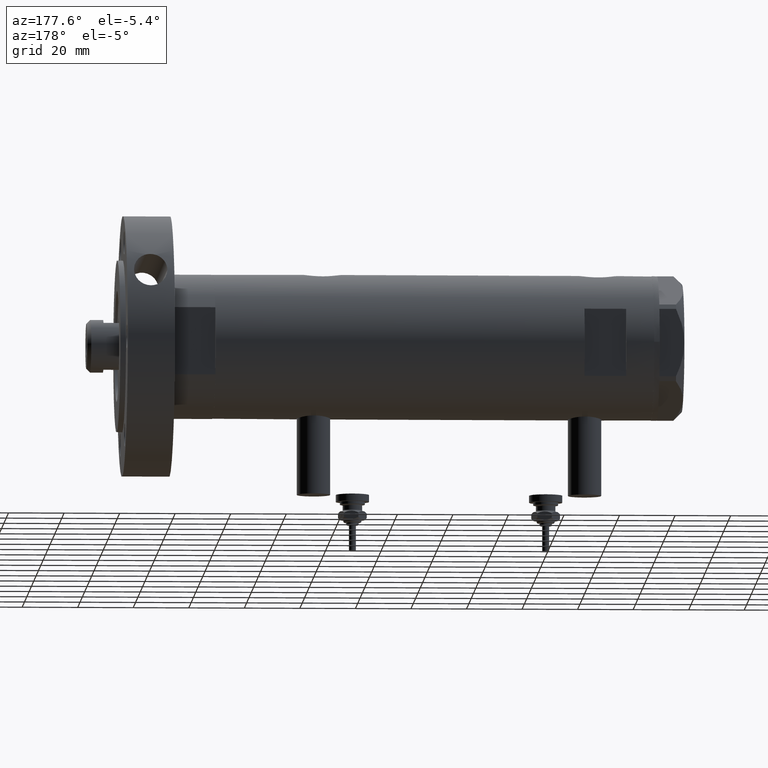
[diagram: clean part render]
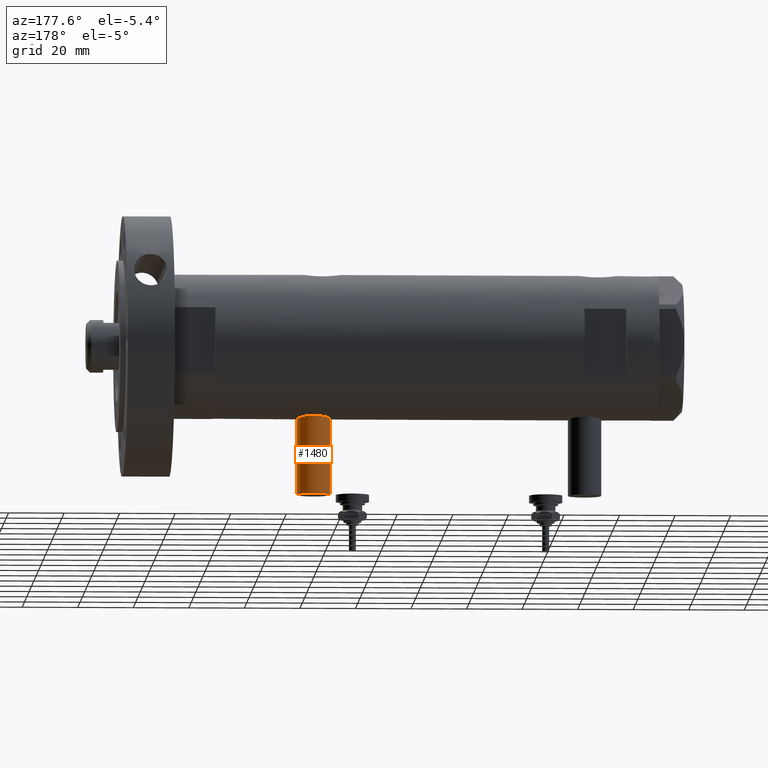
[diagram: same view with one face highlighted and labeled with its STEP entity id]
A machine part, auxiliary view. The second image highlights one B-rep face of the part: STEP entity #1480.
In plain terms, the highlighted cylindrical surface (edge-blend (fillet) strip) has radius 6 mm, axis along (0, 0, 1).
Its self-contained STEP definition (entity closure, byte-faithful):
#272 = CARTESIAN_POINT ( 'NONE',  ( -53.40000000000000568, 7.347880794884122694E-16, -36.64999999999999858 ) ) ;
#337 = CARTESIAN_POINT ( 'NONE',  ( -53.40000000000000568, 0.000000000000000000, -48.65000000000001279 ) ) ;
#477 = EDGE_LOOP ( 'NONE', ( #7026, #4268, #1180, #4265 ) ) ;
#798 = LINE ( 'NONE', #272, #4035 ) ;
#1118 = AXIS2_PLACEMENT_3D ( 'NONE', #5396, #6630, #7071 ) ;
#1180 = ORIENTED_EDGE ( 'NONE', *, *, #4388, .T. ) ;
#1293 = EDGE_CURVE ( 'NONE', #6243, #5734, #1624, .T. ) ;
#1480 = ADVANCED_FACE ( 'NONE', ( #7300 ), #6138, .T. ) ;
#1624 = LINE ( 'NONE', #337, #5952 ) ;
#1915 = AXIS2_PLACEMENT_3D ( 'NONE', #4725, #7731, #6616 ) ;
#2221 = EDGE_CURVE ( 'NONE', #3179, #6243, #6263, .T. ) ;
#2523 = DIRECTION ( 'NONE',  ( 1.000000000000000000, -0.000000000000000000, -0.000000000000000000 ) ) ;
#2703 = CARTESIAN_POINT ( 'NONE',  ( -53.40000000000000568, 0.000000000000000000, -48.65000000000001279 ) ) ;
#3179 = VERTEX_POINT ( 'NONE', #3603 ) ;
#3603 = CARTESIAN_POINT ( 'NONE',  ( -53.40000000000000568, 7.347880794884119736E-16, -36.64999999999999858 ) ) ;
#3866 = CIRCLE ( 'NONE', #1915, 6.000000000000005329 ) ;
#4007 = DIRECTION ( 'NONE',  ( 1.000000000000000000, -0.000000000000000000, -0.000000000000000000 ) ) ;
#4035 = VECTOR ( 'NONE', #7664, 1000.000000000000000 ) ;
#4160 = CARTESIAN_POINT ( 'NONE',  ( -24.80000000000000426, 7.347880794884119736E-16, -36.64999999999999858 ) ) ;
#4265 = ORIENTED_EDGE ( 'NONE', *, *, #1293, .F. ) ;
#4268 = ORIENTED_EDGE ( 'NONE', *, *, #7841, .T. ) ;
#4388 = EDGE_CURVE ( 'NONE', #4970, #5734, #3866, .T. ) ;
#4725 = CARTESIAN_POINT ( 'NONE',  ( -24.80000000000000426, 0.000000000000000000, -42.65000000000000568 ) ) ;
#4970 = VERTEX_POINT ( 'NONE', #4160 ) ;
#5396 = CARTESIAN_POINT ( 'NONE',  ( -53.40000000000000568, 0.000000000000000000, -42.65000000000000568 ) ) ;
#5507 = CARTESIAN_POINT ( 'NONE',  ( -53.40000000000000568, 0.000000000000000000, -42.65000000000000568 ) ) ;
#5734 = VERTEX_POINT ( 'NONE', #6330 ) ;
#5952 = VECTOR ( 'NONE', #4007, 1000.000000000000000 ) ;
#6138 = CYLINDRICAL_SURFACE ( 'NONE', #6354, 6.000000000000005329 ) ;
#6243 = VERTEX_POINT ( 'NONE', #2703 ) ;
#6263 = CIRCLE ( 'NONE', #1118, 6.000000000000005329 ) ;
#6330 = CARTESIAN_POINT ( 'NONE',  ( -24.80000000000000426, 0.000000000000000000, -48.65000000000001279 ) ) ;
#6354 = AXIS2_PLACEMENT_3D ( 'NONE', #5507, #2523, #7382 ) ;
#6616 = DIRECTION ( 'NONE',  ( 0.000000000000000000, 0.000000000000000000, 1.000000000000000000 ) ) ;
#6630 = DIRECTION ( 'NONE',  ( -1.000000000000000000, 0.000000000000000000, 0.000000000000000000 ) ) ;
#7026 = ORIENTED_EDGE ( 'NONE', *, *, #2221, .F. ) ;
#7071 = DIRECTION ( 'NONE',  ( 0.000000000000000000, 0.000000000000000000, 1.000000000000000000 ) ) ;
#7300 = FACE_OUTER_BOUND ( 'NONE', #477, .T. ) ;
#7382 = DIRECTION ( 'NONE',  ( 0.000000000000000000, 0.000000000000000000, -1.000000000000000000 ) ) ;
#7664 = DIRECTION ( 'NONE',  ( 1.000000000000000000, -0.000000000000000000, -0.000000000000000000 ) ) ;
#7731 = DIRECTION ( 'NONE',  ( -1.000000000000000000, 0.000000000000000000, 0.000000000000000000 ) ) ;
#7841 = EDGE_CURVE ( 'NONE', #3179, #4970, #798, .T. ) ;